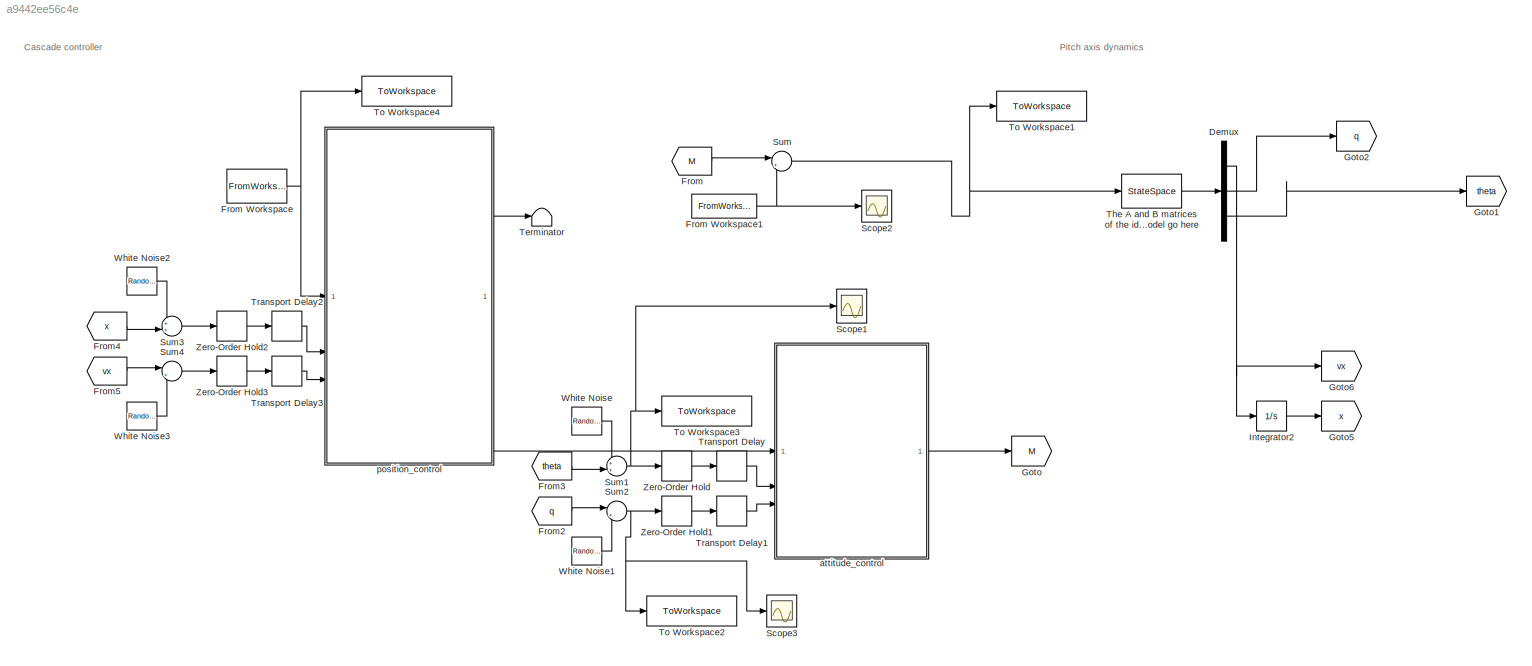
MODEL slx_a9442ee56c4e
KIND model
CONFIG AbsTol = 1e-6
CONFIG EnableMultiTasking = off
CONFIG FixedStep = auto
CONFIG MaxStep = auto
CONFIG MinStep = auto
CONFIG RelTol = 1e-6
CONFIG SampleTimeConstraint = Unconstrained
CONFIG SolverName = ode113
CONFIG StartTime = 0.0
CONFIG StopTime = simulation_time
BLOCK [Demux] Demux
  Outputs = 3
BLOCK [From] From
  GotoTag = M
BLOCK [FromWorkspace] From Workspace
  OutputAfterFinalValue = Setting to zero
  SampleTime = sample_time
  VariableName = SetPoint
BLOCK [FromWorkspace] From Workspace1
  OutputAfterFinalValue = Setting to zero
  SampleTime = sample_time
  VariableName = Excitation3211
BLOCK [From] From2
  GotoTag = q
BLOCK [From] From3
  GotoTag = theta
BLOCK [From] From4
  GotoTag = x
BLOCK [From] From5
  GotoTag = vx
BLOCK [Goto] Goto
  GotoTag = M
BLOCK [Goto] Goto1
  GotoTag = theta
BLOCK [Goto] Goto2
  GotoTag = q
BLOCK [Goto] Goto5
  GotoTag = x
BLOCK [Goto] Goto6
  GotoTag = vx
BLOCK [Integrator] Integrator2
BLOCK [Scope] Scope1
  Floating = off
  NumInputPorts = 1
  ScopeSpecificationString = Simulink.scopes.TimeScopeBlockCfg('CurrentConfiguration', extmgr.ConfigurationSet(extmgr.Configuration('Core','General UI',true),extmgr.Configuration('Core','Source UI',true),extmgr.Configuration('Sources','WiredSimulink',true,'DataLoggingVariableName','ScopeData1'),extmgr.Configuration('Visuals','Time Domain',true,'SerializedDisplays',{struct('MinYLimReal','-2.36747','MaxYLimReal','2.35714','YLab...<+1434ch>
BLOCK [Scope] Scope2
  Floating = off
  NumInputPorts = 1
  ScopeSpecificationString = Simulink.scopes.TimeScopeBlockCfg('CurrentConfiguration', extmgr.ConfigurationSet(extmgr.Configuration('Core','General UI',true),extmgr.Configuration('Core','Source UI',true),extmgr.Configuration('Sources','WiredSimulink',true,'DataLoggingVariableName','ScopeData1'),extmgr.Configuration('Visuals','Time Domain',true,'SerializedDisplays',{struct('MinYLimReal','-1.00000','MaxYLimReal','1.00000','YLab...<+1418ch>
BLOCK [Scope] Scope3
  Floating = off
  NumInputPorts = 1
  ScopeSpecificationString = Simulink.scopes.TimeScopeBlockCfg('CurrentConfiguration', extmgr.ConfigurationSet(extmgr.Configuration('Core','General UI',true),extmgr.Configuration('Core','Source UI',true),extmgr.Configuration('Sources','WiredSimulink',true,'DataLoggingVariableName','ScopeData1'),extmgr.Configuration('Visuals','Time Domain',true,'SerializedDisplays',{struct('MinYLimReal','-14.48365','MaxYLimReal','14.03518','YL...<+1413ch>
BLOCK [Sum] Sum
  Inputs = |++
BLOCK [Sum] Sum1
  Inputs = ++|
BLOCK [Sum] Sum2
  Inputs = |++
BLOCK [Sum] Sum3
  Inputs = ++|
BLOCK [Sum] Sum4
  Inputs = |++
BLOCK [Terminator] Terminator
BLOCK [StateSpace] The A and B matrices of the identified model go here
  A = A
  B = B
  C = C
  D = D
  InitialCondition = 0
BLOCK [ToWorkspace] To Workspace1
  FixptAsFi = on
  MaxDataPoints = inf
  SampleTime = sample_time
  VariableName = Mtot
BLOCK [ToWorkspace] To Workspace2
  FixptAsFi = on
  MaxDataPoints = inf
  SampleTime = sample_time
  VariableName = q
BLOCK [ToWorkspace] To Workspace3
  FixptAsFi = on
  MaxDataPoints = inf
  SampleTime = sample_time
  VariableName = theta
BLOCK [ToWorkspace] To Workspace4
  FixptAsFi = on
  MaxDataPoints = inf
  SampleTime = sample_time
  VariableName = x0
BLOCK [TransportDelay] Transport Delay
  DelayTime = delay.attitude_filter * sample_time
BLOCK [TransportDelay] Transport Delay1
  DelayTime = delay.attitude_filter * sample_time
BLOCK [TransportDelay] Transport Delay2
  DelayTime = delay.position_filter * sample_time
BLOCK [TransportDelay] Transport Delay3
  DelayTime = delay.position_filter * sample_time
BLOCK [RandomNumber] White Noise
  DisableCoverage = on
  SampleTime = sample_time
  Seed = 3
  Variance = noise.attitude_stand_dev^2
BLOCK [RandomNumber] White Noise1
  DisableCoverage = on
  SampleTime = sample_time
  Seed = 4
  Variance = noise.ang_rate_stand_dev^2
BLOCK [RandomNumber] White Noise2
  DisableCoverage = on
  SampleTime = sample_time
  Seed = 1
  Variance = noise.pos_stand_dev^2
BLOCK [RandomNumber] White Noise3
  DisableCoverage = on
  SampleTime = sample_time
  Seed = 2
  Variance = noise.vel_stand_dev^2
BLOCK [ZeroOrderHold] Zero-Order Hold
  SampleTime = sample_time
BLOCK [ZeroOrderHold] Zero-Order Hold1
  SampleTime = sample_time
BLOCK [ZeroOrderHold] Zero-Order Hold2
  SampleTime = sample_time
BLOCK [ZeroOrderHold] Zero-Order Hold3
  SampleTime = sample_time
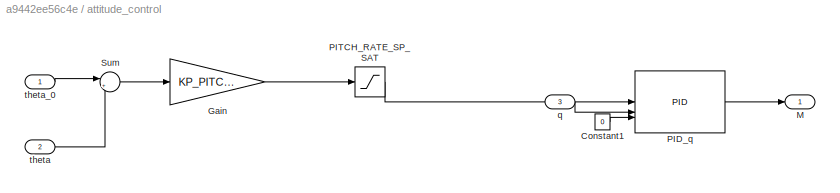
BLOCK [SubSystem] attitude_control
BLOCK [Constant] attitude_control/Constant1
  OutDataTypeStr = boolean
  Value = 0
BLOCK [Gain] attitude_control/Gain
  Gain = KP_PITCH*0.75
BLOCK [Outport] attitude_control/M
BLOCK [Reference] attitude_control/PID_q  REF=custom_PIDs_w_reset/PID
  SourceBlock = custom_PIDs_w_reset/PID
BLOCK [Saturate] attitude_control/PITCH_RATE_SP_SAT
  LowerLimit = Q_MIN
  UpperLimit = Q_MAX
BLOCK [Sum] attitude_control/Sum
  Inputs = |+-
BLOCK [Inport] attitude_control/q
  Port = 3
BLOCK [Inport] attitude_control/theta
  Port = 2
BLOCK [Inport] attitude_control/theta_0
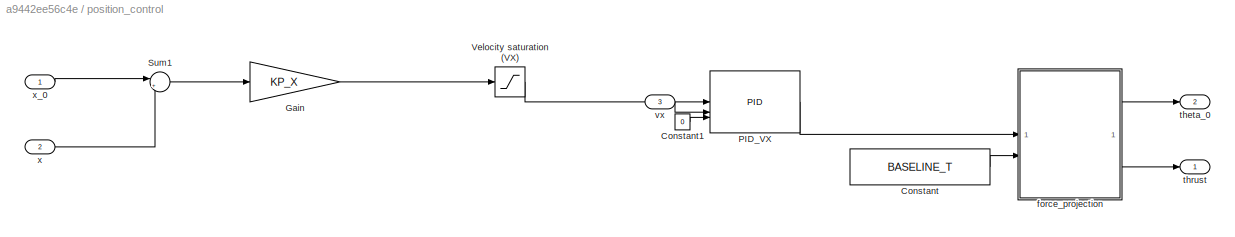
BLOCK [SubSystem] position_control
BLOCK [Constant] position_control/Constant
  Value = BASELINE_T
BLOCK [Constant] position_control/Constant1
  OutDataTypeStr = boolean
  Value = 0
BLOCK [Gain] position_control/Gain
  Gain = KP_X
BLOCK [Reference] position_control/PID_VX  REF=custom_PIDs_w_reset/PID
  SourceBlock = custom_PIDs_w_reset/PID
BLOCK [Sum] position_control/Sum1
  Inputs = |+-
BLOCK [Saturate] position_control/Velocity saturation (VX)
  LowerLimit = VEL_MIN
  UpperLimit = VEL_MAX
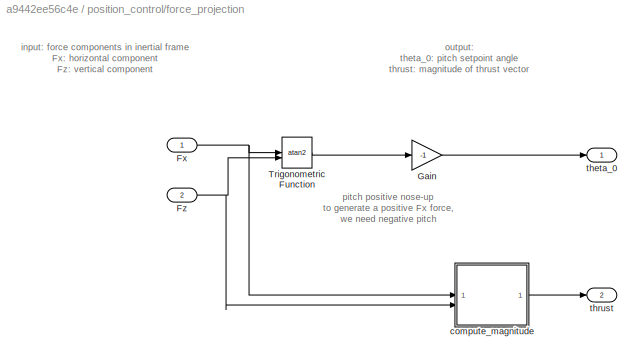
BLOCK [SubSystem] position_control/force_projection
BLOCK [Inport] position_control/force_projection/Fx
BLOCK [Inport] position_control/force_projection/Fz
  Port = 2
BLOCK [Gain] position_control/force_projection/Gain
  Gain = -1
BLOCK [Trigonometry] position_control/force_projection/Trigonometric Function
  Operator = atan2
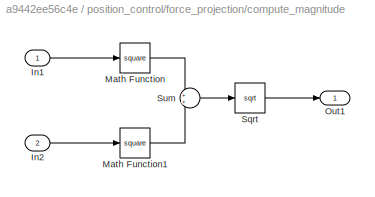
BLOCK [SubSystem] position_control/force_projection/compute_magnitude
BLOCK [Inport] position_control/force_projection/compute_magnitude/In1
  NameLocation = top
BLOCK [Inport] position_control/force_projection/compute_magnitude/In2
  Port = 2
BLOCK [Math] position_control/force_projection/compute_magnitude/Math Function
  Operator = square
  SignedPower = on
BLOCK [Math] position_control/force_projection/compute_magnitude/Math Function1
  Operator = square
  SignedPower = on
BLOCK [Outport] position_control/force_projection/compute_magnitude/Out1
BLOCK [Sqrt] position_control/force_projection/compute_magnitude/Sqrt
BLOCK [Sum] position_control/force_projection/compute_magnitude/Sum
BLOCK [Outport] position_control/force_projection/theta_0
BLOCK [Outport] position_control/force_projection/thrust
  Port = 2
BLOCK [Outport] position_control/theta_0
  Port = 2
BLOCK [Outport] position_control/thrust
BLOCK [Inport] position_control/vx
  Port = 3
BLOCK [Inport] position_control/x
  Port = 2
BLOCK [Inport] position_control/x_0
ANNOTATION (root): Cascade controller
ANNOTATION (root): Pitch axis dynamics
ANNOTATION position_control/force_projection: input: force components in inertial frame Fx: horizontal component Fz: vertical component
ANNOTATION position_control/force_projection: output: theta_0: pitch setpoint angle thrust: magnitude of thrust vector
ANNOTATION position_control/force_projection: pitch positive nose-up to generate a positive Fx force, we need negative pitch
NET Demux:1 -> Goto6:1, Integrator2:1
LINE Demux:2 -> Goto2:1
LINE Demux:3 -> Goto1:1
NET From Workspace1:1 -> Scope2:1, Sum:2
NET From Workspace:1 -> To Workspace4:1, position_control:1
LINE From2:1 -> Sum2:1
LINE From3:1 -> Sum1:2
LINE From4:1 -> Sum3:2
LINE From5:1 -> Sum4:1
LINE From:1 -> Sum:1
LINE Integrator2:1 -> Goto5:1
NET Sum1:1 -> Scope1:1, To Workspace3:1, Zero-Order Hold:1
NET Sum2:1 -> Scope3:1, To Workspace2:1, Zero-Order Hold1:1
LINE Sum3:1 -> Zero-Order Hold2:1
LINE Sum4:1 -> Zero-Order Hold3:1
NET Sum:1 -> The A and B matrices of the identified model go here:1, To Workspace1:1
LINE The A and B matrices of the identified model go here:1 -> Demux:1
LINE Transport Delay1:1 -> attitude_control:3
LINE Transport Delay2:1 -> position_control:2
LINE Transport Delay3:1 -> position_control:3
LINE Transport Delay:1 -> attitude_control:2
LINE White Noise1:1 -> Sum2:2
LINE White Noise2:1 -> Sum3:1
LINE White Noise3:1 -> Sum4:2
LINE White Noise:1 -> Sum1:1
LINE Zero-Order Hold1:1 -> Transport Delay1:1
LINE Zero-Order Hold2:1 -> Transport Delay2:1
LINE Zero-Order Hold3:1 -> Transport Delay3:1
LINE Zero-Order Hold:1 -> Transport Delay:1
LINE attitude_control/Constant1:1 -> attitude_control/PID_q:3
LINE attitude_control/Gain:1 -> attitude_control/PITCH_RATE_SP_SAT:1
LINE attitude_control/PID_q:1 -> attitude_control/M:1
LINE attitude_control/PITCH_RATE_SP_SAT:1 -> attitude_control/PID_q:1
LINE attitude_control/Sum:1 -> attitude_control/Gain:1
LINE attitude_control/q:1 -> attitude_control/PID_q:2
LINE attitude_control/theta:1 -> attitude_control/Sum:2
LINE attitude_control/theta_0:1 -> attitude_control/Sum:1
LINE attitude_control:1 -> Goto:1
LINE position_control/Constant1:1 -> position_control/PID_VX:3
LINE position_control/Constant:1 -> position_control/force_projection:2
LINE position_control/Gain:1 -> position_control/Velocity saturation (VX):1
LINE position_control/PID_VX:1 -> position_control/force_projection:1
LINE position_control/Sum1:1 -> position_control/Gain:1
LINE position_control/Velocity saturation (VX):1 -> position_control/PID_VX:1
NET position_control/force_projection/Fx:1 -> position_control/force_projection/Trigonometric Function:1, position_control/force_projection/compute_magnitude:1
NET position_control/force_projection/Fz:1 -> position_control/force_projection/Trigonometric Function:2, position_control/force_projection/compute_magnitude:2
LINE position_control/force_projection/Gain:1 -> position_control/force_projection/theta_0:1
LINE position_control/force_projection/Trigonometric Function:1 -> position_control/force_projection/Gain:1
LINE position_control/force_projection/compute_magnitude/In1:1 -> position_control/force_projection/compute_magnitude/Math Function:1
LINE position_control/force_projection/compute_magnitude/In2:1 -> position_control/force_projection/compute_magnitude/Math Function1:1
LINE position_control/force_projection/compute_magnitude/Math Function1:1 -> position_control/force_projection/compute_magnitude/Sum:2
LINE position_control/force_projection/compute_magnitude/Math Function:1 -> position_control/force_projection/compute_magnitude/Sum:1
LINE position_control/force_projection/compute_magnitude/Sqrt:1 -> position_control/force_projection/compute_magnitude/Out1:1
LINE position_control/force_projection/compute_magnitude/Sum:1 -> position_control/force_projection/compute_magnitude/Sqrt:1
LINE position_control/force_projection/compute_magnitude:1 -> position_control/force_projection/thrust:1
LINE position_control/force_projection:1 -> position_control/theta_0:1
LINE position_control/force_projection:2 -> position_control/thrust:1
LINE position_control/vx:1 -> position_control/PID_VX:2
LINE position_control/x:1 -> position_control/Sum1:2
LINE position_control/x_0:1 -> position_control/Sum1:1
LINE position_control:1 -> Terminator:1
LINE position_control:2 -> attitude_control:1
note: NET lines group one-source signal fan-out (src -> all destinations, sorted); 1:1 wires keep LINE
